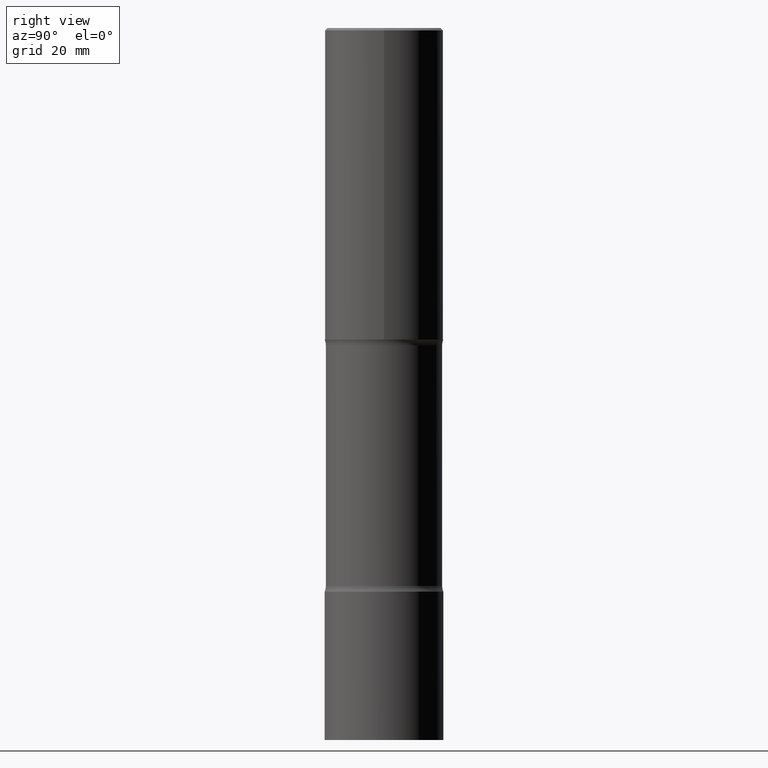
[diagram: clean part render]
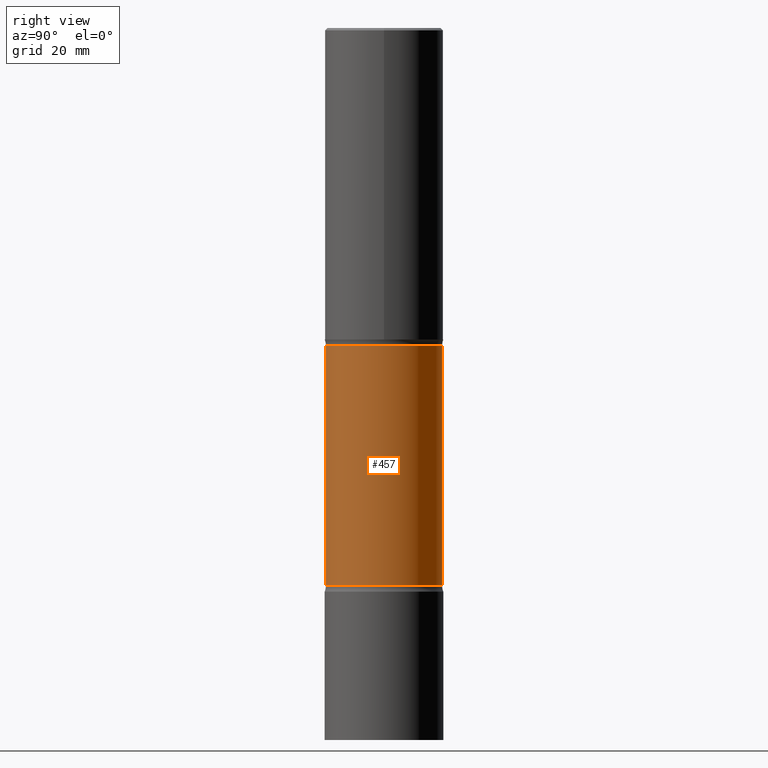
[diagram: same view with one face highlighted and labeled with its STEP entity id]
A machine part, right view. The second image highlights one B-rep face of the part: STEP entity #457.
In plain terms, the highlighted cylindrical surface (partial cylindrical patch) has radius 12.446 mm, axis along (0, -0, -1).
Its self-contained STEP definition (entity closure, byte-faithful):
#35 = EDGE_CURVE ( 'NONE', #59, #111, #319, .T. ) ;
#42 = EDGE_CURVE ( 'NONE', #128, #111, #208, .T. ) ;
#54 = EDGE_LOOP ( 'NONE', ( #363, #69, #218, #144 ) ) ;
#58 = DIRECTION ( 'NONE',  ( 2.601351323791836917E-29, -3.268248701348439037E-15, -1.000000000000000000 ) ) ;
#59 = VERTEX_POINT ( 'NONE', #427 ) ;
#63 = VECTOR ( 'NONE', #122, 39.37007874015748143 ) ;
#69 = ORIENTED_EDGE ( 'NONE', *, *, #35, .T. ) ;
#72 = CARTESIAN_POINT ( 'NONE',  ( 1.486357676291951426E-28, -2.067570323369244540E-14, -5.999999999999999112 ) ) ;
#79 = CIRCLE ( 'NONE', #230, 0.4900000000000003242 ) ;
#101 = DIRECTION ( 'NONE',  ( 2.601351323791836917E-29, -3.268248701348439037E-15, -1.000000000000000000 ) ) ;
#107 = AXIS2_PLACEMENT_3D ( 'NONE', #203, #464, #320 ) ;
#111 = VERTEX_POINT ( 'NONE', #315 ) ;
#122 = DIRECTION ( 'NONE',  ( 2.601351323791836917E-29, -3.268248701348439037E-15, -1.000000000000000000 ) ) ;
#128 = VERTEX_POINT ( 'NONE', #150 ) ;
#144 = ORIENTED_EDGE ( 'NONE', *, *, #497, .F. ) ;
#149 = FACE_OUTER_BOUND ( 'NONE', #54, .T. ) ;
#150 = CARTESIAN_POINT ( 'NONE',  ( 3.421651712066386020E-15, 0.4899999999999836153, -4.701010205144338094 ) ) ;
#163 = VERTEX_POINT ( 'NONE', #217 ) ;
#192 = LINE ( 'NONE', #500, #194 ) ;
#194 = VECTOR ( 'NONE', #101, 39.37007874015748143 ) ;
#203 = CARTESIAN_POINT ( 'NONE',  ( 1.148444794047964962E-28, -1.643028152359054986E-14, -4.701010205144336318 ) ) ;
#208 = CIRCLE ( 'NONE', #107, 0.4900000000000001021 ) ;
#217 = CARTESIAN_POINT ( 'NONE',  ( 3.421651712066334744E-15, 0.4899999999999904432, -2.673989794855666791 ) ) ;
#218 = ORIENTED_EDGE ( 'NONE', *, *, #42, .F. ) ;
#224 = DIRECTION ( 'NONE',  ( 6.982962677686265922E-15, 1.000000000000000000, -3.345119992241952764E-15 ) ) ;
#230 = AXIS2_PLACEMENT_3D ( 'NONE', #300, #58, #224 ) ;
#246 = CARTESIAN_POINT ( 'NONE',  ( -3.361644018907903327E-15, -0.4900000000000209188, -5.999999999999998224 ) ) ;
#300 = CARTESIAN_POINT ( 'NONE',  ( 6.211455712822142342E-29, -9.805474700057820647E-15, -2.673989794855665458 ) ) ;
#312 = CYLINDRICAL_SURFACE ( 'NONE', #410, 0.4900000000000002132 ) ;
#315 = CARTESIAN_POINT ( 'NONE',  ( -3.395946508896793533E-15, -0.4900000000000166445, -4.701010205144335430 ) ) ;
#319 = LINE ( 'NONE', #246, #63 ) ;
#320 = DIRECTION ( 'NONE',  ( 6.982962677686266711E-15, 1.000000000000000000, -3.345119992241954342E-15 ) ) ;
#363 = ORIENTED_EDGE ( 'NONE', *, *, #447, .T. ) ;
#410 = AXIS2_PLACEMENT_3D ( 'NONE', #72, #482, #444 ) ;
#427 = CARTESIAN_POINT ( 'NONE',  ( -3.395946508896848359E-15, -0.4900000000000101497, -2.673989794855663682 ) ) ;
#444 = DIRECTION ( 'NONE',  ( 6.982962677686266711E-15, 1.000000000000000000, -2.230079994827968904E-15 ) ) ;
#447 = EDGE_CURVE ( 'NONE', #163, #59, #79, .T. ) ;
#457 = ADVANCED_FACE ( 'NONE', ( #149 ), #312, .T. ) ;
#464 = DIRECTION ( 'NONE',  ( 2.601351323791836917E-29, -3.268248701348439037E-15, -1.000000000000000000 ) ) ;
#482 = DIRECTION ( 'NONE',  ( 2.601351323791836917E-29, -3.268248701348439037E-15, -1.000000000000000000 ) ) ;
#497 = EDGE_CURVE ( 'NONE', #163, #128, #192, .T. ) ;
#500 = CARTESIAN_POINT ( 'NONE',  ( 3.421651712066420335E-15, 0.4899999999999795630, -6.000000000000000888 ) ) ;